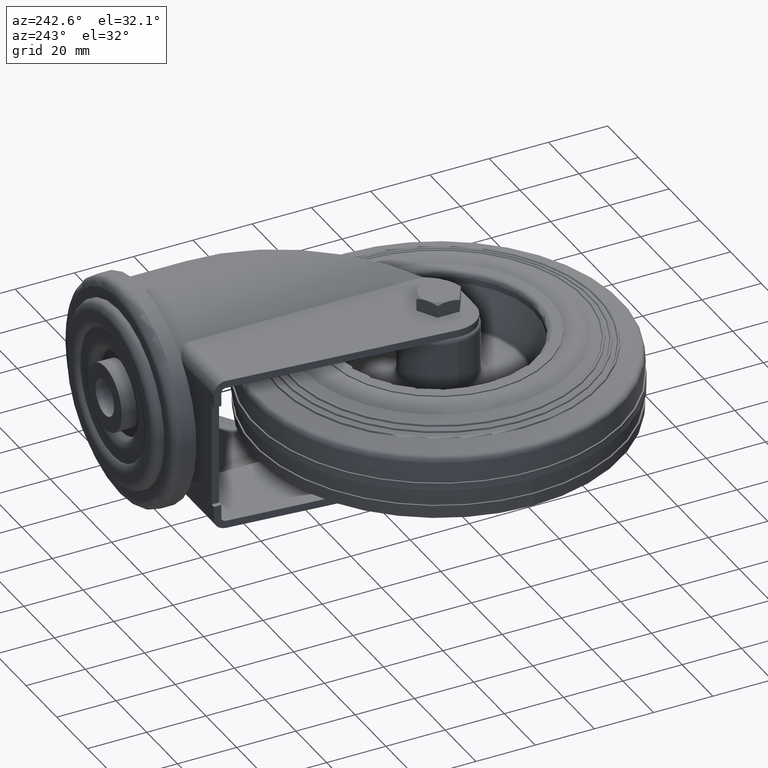
[diagram: clean part render]
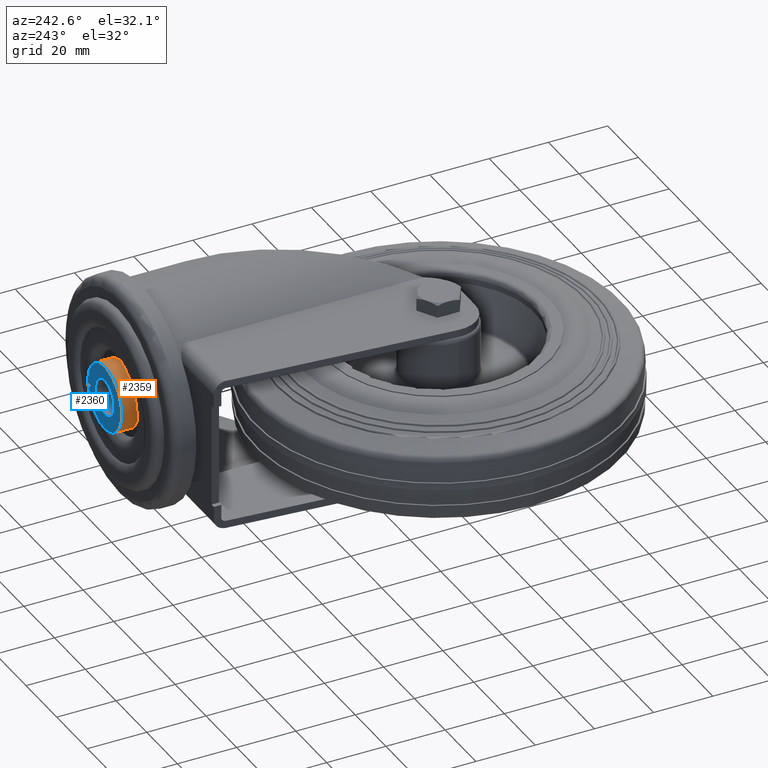
[diagram: same view with the hole feature highlighted: cylindrical wall and planar end face, labeled with their STEP entity ids]
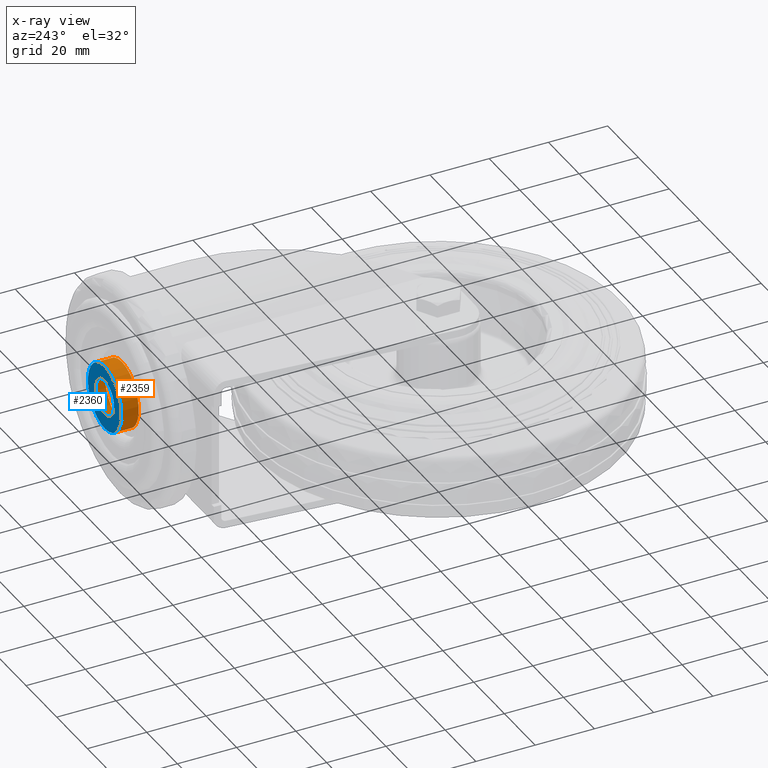
[diagram: x-ray of the same camera — body ghosted, the hole faces saturated]
A machine part, auxiliary view. The highlighted faces form one hole feature of diameter 22 mm: the cylindrical wall (entity #2359, orange) and its adjacent planar end face (entity #2360, blue) — they share a circular edge in the B-rep.
The next image is the same camera in x-ray (body ghosted, the hole faces saturated) — the bore reads through the body.
Wall:
#237=CYLINDRICAL_SURFACE('',#2750,11.);
#354=CIRCLE('',#2749,11.);
#355=CIRCLE('',#2751,11.);
#534=FACE_OUTER_BOUND('',#700,.T.);
#700=EDGE_LOOP('',(#1845,#1846,#1847,#1848));
#871=LINE('',#4185,#980);
#980=VECTOR('',#3278,11.);
#1136=VERTEX_POINT('',#4180);
#1137=VERTEX_POINT('',#4183);
#1397=EDGE_CURVE('',#1136,#1136,#354,.T.);
#1398=EDGE_CURVE('',#1137,#1137,#355,.T.);
#1399=EDGE_CURVE('',#1137,#1136,#871,.T.);
#1845=ORIENTED_EDGE('',*,*,#1398,.F.);
#1846=ORIENTED_EDGE('',*,*,#1399,.T.);
#1847=ORIENTED_EDGE('',*,*,#1397,.T.);
#1848=ORIENTED_EDGE('',*,*,#1399,.F.);
#2359=ADVANCED_FACE('',(#534),#237,.T.);
#2749=AXIS2_PLACEMENT_3D('',#4181,#3272,#3273);
#2750=AXIS2_PLACEMENT_3D('',#4182,#3274,#3275);
#2751=AXIS2_PLACEMENT_3D('',#4184,#3276,#3277);
#3272=DIRECTION('center_axis',(0.,1.,0.));
#3273=DIRECTION('ref_axis',(0.,0.,1.));
#3274=DIRECTION('center_axis',(0.,1.,0.));
#3275=DIRECTION('ref_axis',(0.,0.,1.));
#3276=DIRECTION('center_axis',(0.,1.,0.));
#3277=DIRECTION('ref_axis',(0.,0.,1.));
#3278=DIRECTION('',(0.,-1.,0.));
#4180=CARTESIAN_POINT('',(37.,87.75,-11.));
#4181=CARTESIAN_POINT('Origin',(37.,87.75,0.));
#4182=CARTESIAN_POINT('Origin',(37.,93.5,0.));
#4183=CARTESIAN_POINT('',(37.,93.5,-11.));
#4184=CARTESIAN_POINT('Origin',(37.,93.5,0.));
#4185=CARTESIAN_POINT('',(37.,93.5,-11.));
End face:
#272=FACE_BOUND('',#702,.T.);
#355=CIRCLE('',#2751,11.);
#356=CIRCLE('',#2753,6.);
#535=FACE_OUTER_BOUND('',#701,.T.);
#701=EDGE_LOOP('',(#1849));
#702=EDGE_LOOP('',(#1850));
#1137=VERTEX_POINT('',#4183);
#1138=VERTEX_POINT('',#4187);
#1398=EDGE_CURVE('',#1137,#1137,#355,.T.);
#1400=EDGE_CURVE('',#1138,#1138,#356,.T.);
#1849=ORIENTED_EDGE('',*,*,#1398,.T.);
#1850=ORIENTED_EDGE('',*,*,#1400,.F.);
#2268=PLANE('',#2752);
#2360=ADVANCED_FACE('',(#535,#272),#2268,.F.);
#2751=AXIS2_PLACEMENT_3D('',#4184,#3276,#3277);
#2752=AXIS2_PLACEMENT_3D('',#4186,#3279,#3280);
#2753=AXIS2_PLACEMENT_3D('',#4188,#3281,#3282);
#3276=DIRECTION('center_axis',(0.,1.,0.));
#3277=DIRECTION('ref_axis',(0.,0.,1.));
#3279=DIRECTION('center_axis',(0.,-1.,0.));
#3280=DIRECTION('ref_axis',(0.,0.,-1.));
#3281=DIRECTION('center_axis',(0.,1.,0.));
#3282=DIRECTION('ref_axis',(0.,0.,1.));
#4183=CARTESIAN_POINT('',(37.,93.5,-11.));
#4184=CARTESIAN_POINT('Origin',(37.,93.5,0.));
#4186=CARTESIAN_POINT('Origin',(26.,93.5,0.));
#4187=CARTESIAN_POINT('',(37.,93.5,-6.));
#4188=CARTESIAN_POINT('Origin',(37.,93.5,0.));